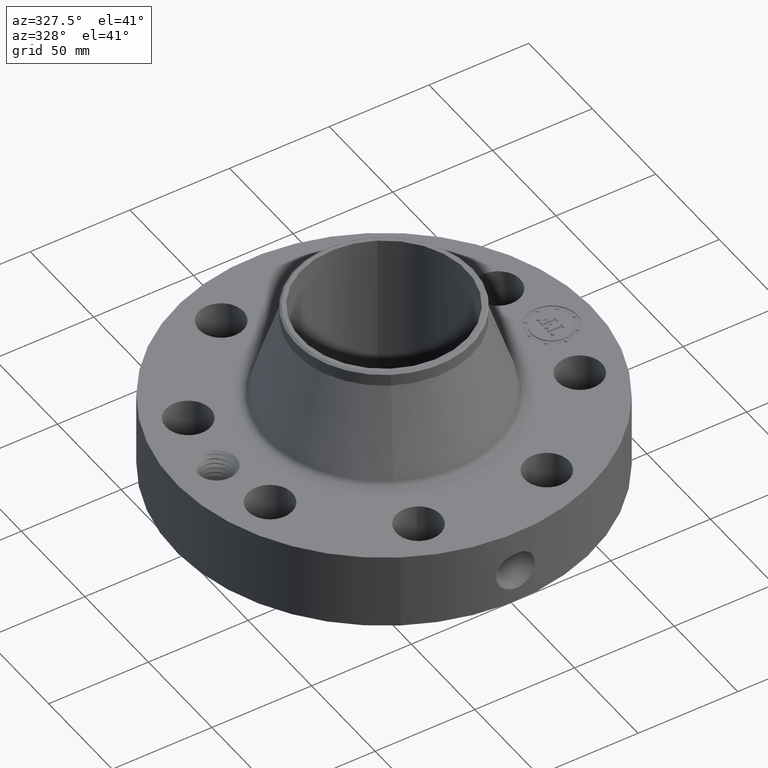
[diagram: clean part render]
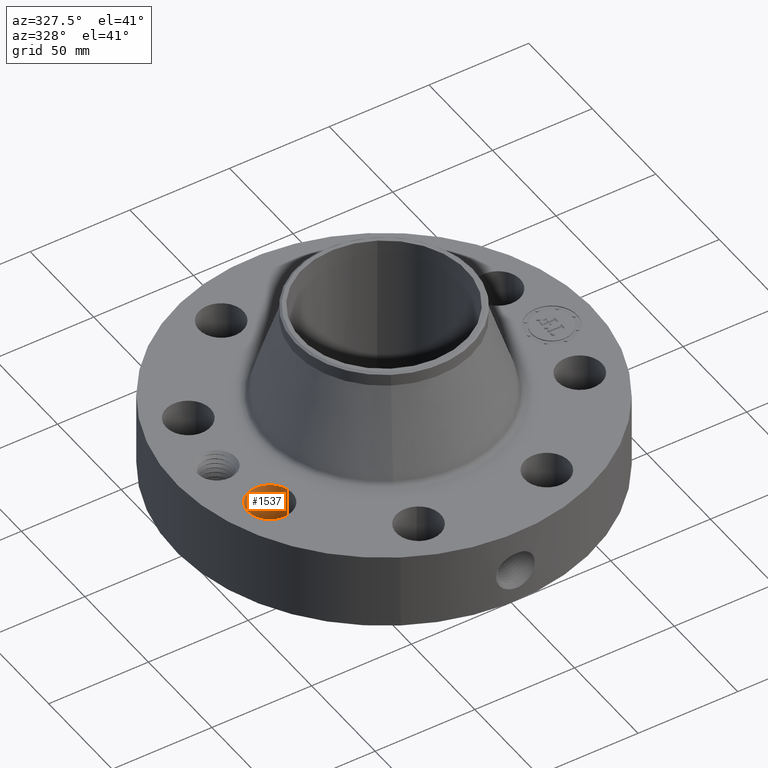
[diagram: same view with one face highlighted and labeled with its STEP entity id]
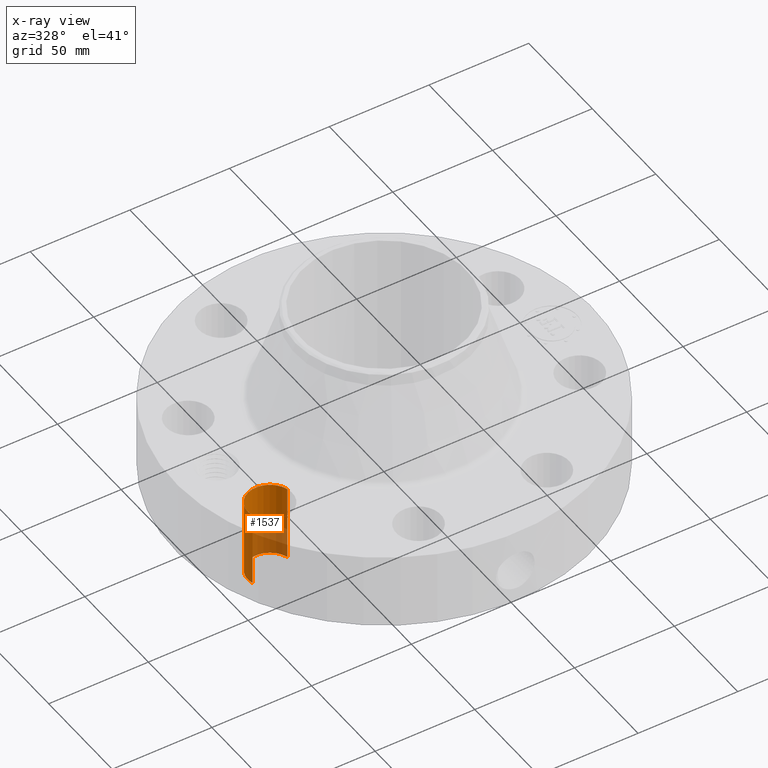
[diagram: x-ray of the same camera — body ghosted, the highlighted face saturated]
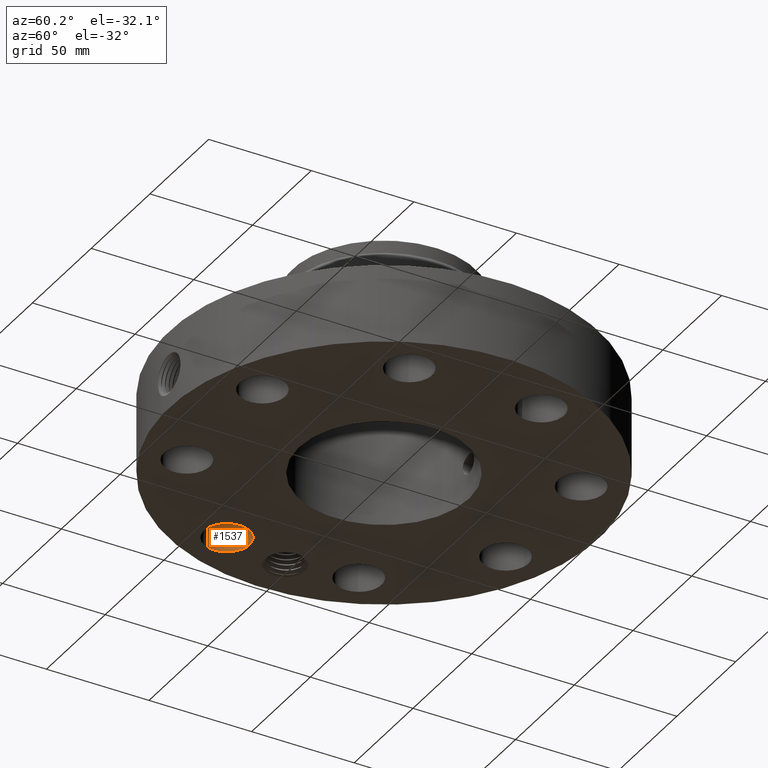
[diagram: same view with one face highlighted and labeled with its STEP entity id]
A machine part, auxiliary view. The second image highlights one B-rep face of the part: STEP entity #1537.
The next image is the same camera in x-ray: the body ghosted, the highlighted face saturated — about 31% of this face is hidden behind the body in this view.
A second angle (auxiliary view) of the same face is appended — the face is thin or edge-on in the first view.
In plain terms, the highlighted cylindrical surface (edge-blend (fillet) strip) has radius 11.176 mm, axis along (-0, 0, -1).
Its self-contained STEP definition (entity closure, byte-faithful):
#305=AXIS2_PLACEMENT_3D('Circle Axis2P3D',#303,#304,$) ;
#613=AXIS2_PLACEMENT_3D('Circle Axis2P3D',#611,#612,$) ;
#1512=AXIS2_PLACEMENT_3D('Cylinder Axis2P3D',#1509,#1510,#1511) ;
#298=CARTESIAN_POINT('Vertex',(-2.63583941543,-1.14280476743,0.250000000001)) ;
#300=CARTESIAN_POINT('Vertex',(-3.48024308982,-1.39055955484,0.250000000001)) ;
#303=CARTESIAN_POINT('Axis2P3D Location',(-3.05804125262,-1.26668216113,0.250000000001)) ;
#611=CARTESIAN_POINT('Axis2P3D Location',(-3.05804125262,-1.26668216113,1.75000000001)) ;
#615=CARTESIAN_POINT('Vertex',(-3.48024308982,-1.39055955484,1.75000000001)) ;
#617=CARTESIAN_POINT('Vertex',(-2.63583941543,-1.14280476743,1.75000000001)) ;
#1509=CARTESIAN_POINT('Axis2P3D Location',(-3.05804125262,-1.26668216113,1.74606299213)) ;
#1514=CARTESIAN_POINT('Line Origine',(-2.63583941543,-1.14280476743,1.)) ;
#1519=CARTESIAN_POINT('Line Origine',(-3.48024308982,-1.39055955484,1.)) ;
#304=DIRECTION('Axis2P3D Direction',(0.,0.,-0.0393700787402)) ;
#612=DIRECTION('Axis2P3D Direction',(0.,0.,-0.0393700787402)) ;
#1510=DIRECTION('Axis2P3D Direction',(-0.,0.,-0.0393700787402)) ;
#1511=DIRECTION('Axis2P3D XDirection',(-0.0377775444876,-0.0110842335096,0.)) ;
#1515=DIRECTION('Vector Direction',(0.,0.,-0.0393700787402)) ;
#1520=DIRECTION('Vector Direction',(0.,0.,-0.0393700787402)) ;
#1516=VECTOR('Line Direction',#1515,0.0393700787402) ;
#1521=VECTOR('Line Direction',#1520,0.0393700787402) ;
#1532=ORIENTED_EDGE('',*,*,#1523,.F.) ;
#1533=ORIENTED_EDGE('',*,*,#307,.T.) ;
#1534=ORIENTED_EDGE('',*,*,#1518,.T.) ;
#1535=ORIENTED_EDGE('',*,*,#619,.F.) ;
#1537=ADVANCED_FACE('PartBody',(#1536),#1513,.F.) ;
#306=CIRCLE('generated circle',#305,0.440000000002) ;
#614=CIRCLE('generated circle',#613,0.440000000002) ;
#1513=CYLINDRICAL_SURFACE('generated cylinder',#1512,0.440000000002) ;
#307=EDGE_CURVE('',#301,#299,#306,.T.) ;
#619=EDGE_CURVE('',#616,#618,#614,.T.) ;
#1518=EDGE_CURVE('',#299,#618,#1517,.F.) ;
#1523=EDGE_CURVE('',#301,#616,#1522,.F.) ;
#1531=EDGE_LOOP('',(#1532,#1533,#1534,#1535)) ;
#1536=FACE_OUTER_BOUND('',#1531,.T.) ;
#1517=LINE('Line',#1514,#1516) ;
#1522=LINE('Line',#1519,#1521) ;
#299=VERTEX_POINT('',#298) ;
#301=VERTEX_POINT('',#300) ;
#616=VERTEX_POINT('',#615) ;
#618=VERTEX_POINT('',#617) ;